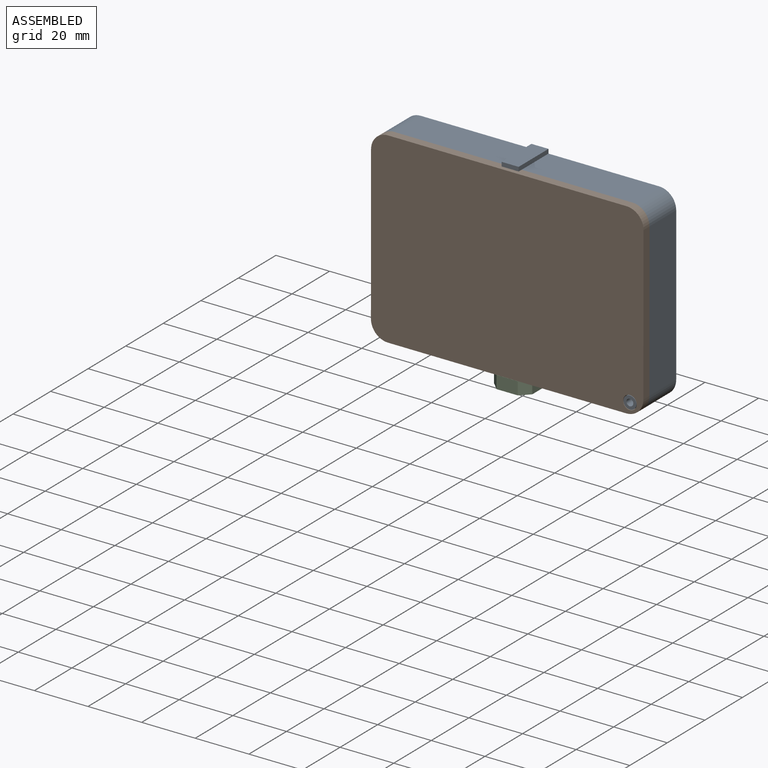
[diagram: assembled view]
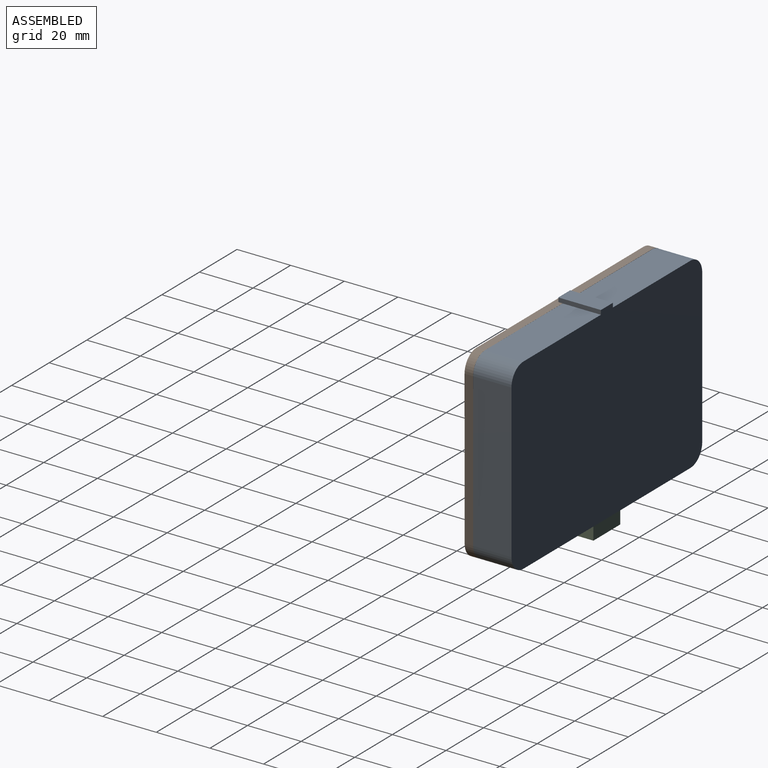
[diagram: assembled view, second angle]
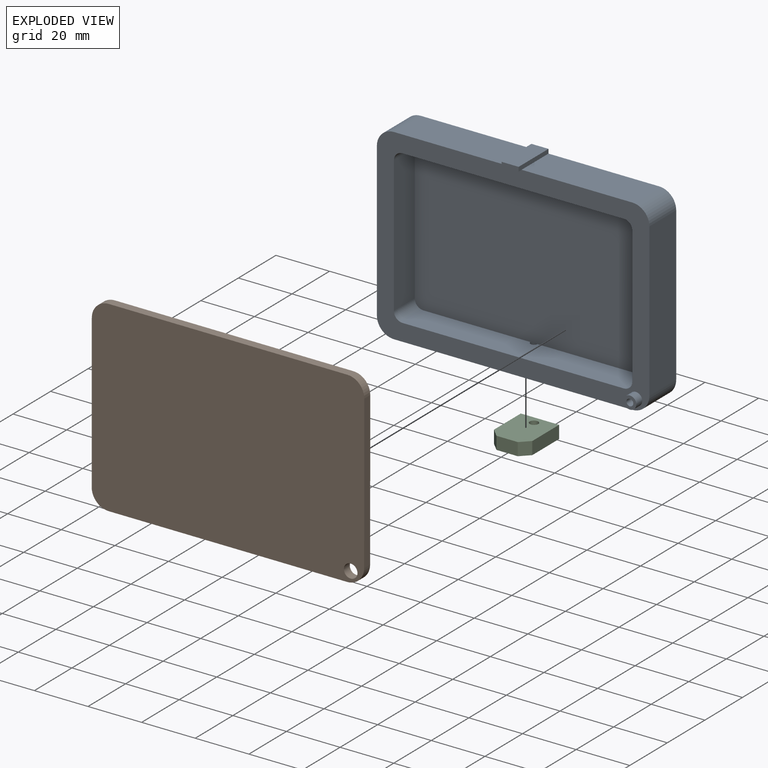
[diagram: exploded view]
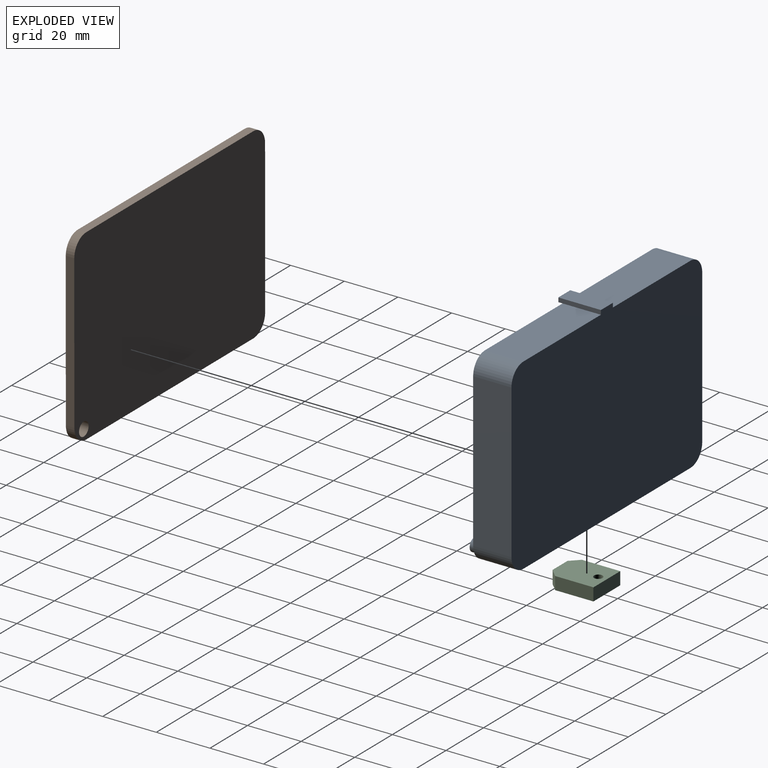
[diagram: exploded view, second angle]
ASSEMBLY  parts=3 mates=2
PART A: 36 faces, bbox 101.6x17.5x71.4 mm
  f0: plane 88.9x14.29mm, normal (0,0,-1), area 1136.5mm2, adj f9,f10,f14,f15,f30,f31,f32,f33
  f1: plane 82.55x11.11mm, normal (0,0,1), area 914.8mm2, adj f9,f11,f17,f18,f30
  f2: plane 41.27x14.29mm, normal (0,0,1), area 589.6mm2, adj f9,f10,f13,f25
  f3: plane 82.55x11.11mm, normal (0,0,-1), area 917.3mm2, adj f9,f11,f16,f19
  f4: plane 50.8x11.11mm, normal (-1,0,0), area 564.5mm2, adj f9,f11,f16,f17
  f5: plane 57.15x14.29mm, normal (1,0,0), area 816.5mm2, adj f9,f10,f12,f15
  f6: plane 41.28x14.29mm, normal (0,0,1), area 589.8mm2, adj f9,f10,f12,f24
  f7: plane 57.15x14.29mm, normal (-1,0,0), area 816.5mm2, adj f9,f10,f13,f14
  f8: plane 50.8x11.11mm, normal (1,0,0), area 564.5mm2, adj f9,f11,f18,f19
  f9: plane 101.6x69.85mm, normal (0,-1,0), area 1972.4mm2, adj f0,f1,f2,f3,f4,f5,f6,f7
  f10: plane 101.6x71.44mm, normal (0,1,0), area 7072.2mm2, adj f0,f2,f5,f6,f7,f12,f13,f14
  f11: plane 88.9x57.15mm, normal (0,-1,0), area 5072mm2, adj f1,f3,f4,f8,f16,f17,f18,f19
  f12: cylinder r=6.35mm len=14.29mm, axis (0,-1,0), area 142.5mm2, adj f5,f6,f9,f10
  f13: cylinder r=6.35mm len=14.29mm, axis (0,1,0), area 142.5mm2, adj f2,f7,f9,f10
  f14: cylinder r=6.35mm len=14.29mm, axis (0,-1,0), area 142.5mm2, adj f0,f7,f9,f10
  f15: cylinder r=6.35mm len=14.29mm, axis (0,1,0), area 142.5mm2, adj f0,f5,f9,f10
  f16: cylinder r=3.17mm len=11.11mm, axis (0,1,0), area 55.4mm2, adj f3,f4,f9,f11
  f17: cylinder r=3.17mm len=11.11mm, axis (0,-1,0), area 55.4mm2, adj f1,f4,f9,f11
  f18: cylinder r=3.17mm len=11.11mm, axis (0,1,0), area 55.4mm2, adj f1,f8,f9,f11
  f19: cylinder r=3.17mm len=11.11mm, axis (0,-1,0), area 55.4mm2, adj f3,f8,f9,f11
  f20: cylinder r=2.38mm len=4.76mm, axis (0,1,0), area 47.5mm2, adj f9,f21
  f21: plane 4.76x4.76mm, normal (0,-1,0), area 12.7mm2, adj f20,f22
  f22: cylinder r=1.27mm len=12.7mm, axis (0,-1,0), area 101.3mm2, adj f21,f23
  f23: plane 2.54x2.54mm, normal (0,-1,0), area 5.1mm2, adj f22
  f24: plane 15.88x1.59mm, normal (1,0,0), area 25.2mm2, adj f6,f10,f26,f27,f28
  f25: plane 15.88x1.59mm, normal (-1,0,0), area 25.2mm2, adj f2,f10,f26,f27,f28
  f26: plane 6.35x1.59mm, normal (0,-1,0), area 10.1mm2, adj f24,f25,f27,f28
  f27: plane 15.88x6.35mm, normal (0,0,1), area 100.8mm2, adj f10,f24,f25,f26
  f28: plane 6.35x1.59mm, normal (0,0,-1), area 10.1mm2, adj f9,f24,f25,f26
  f29: plane 2.54x1.27mm, normal (0,0,-1), area 2.5mm2, adj f11,f30
  f30: cylinder r=1.27mm len=6.35mm, axis (0,0,-1), area 50.7mm2, adj f0,f1,f29
  f31: plane 22.5x5.08mm, normal (0,-1,0), area 114.3mm2, adj f0,f32,f34,f35
  f32: plane 5.72x5.08mm, normal (-1,0,0), area 29mm2, adj f0,f31,f33,f35
  f33: plane 22.5x5.08mm, normal (0,1,0), area 114.3mm2, adj f0,f32,f34,f35
  f34: plane 5.72x5.08mm, normal (1,0,0), area 29mm2, adj f0,f31,f33,f35
  f35: plane 22.5x5.72mm, normal (0,0,-1), area 128.6mm2, adj f31,f32,f33,f34
PART B: 11 faces, bbox 101.6x3.2x69.9 mm
  f0: plane 57.15x3.18mm, normal (1,0,0), area 181.5mm2, adj f4,f5,f6,f9
  f1: plane 88.9x3.18mm, normal (0,0,1), area 282.3mm2, adj f4,f5,f6,f7
  f2: plane 57.15x3.18mm, normal (-1,0,0), area 181.5mm2, adj f4,f5,f7,f8
  f3: plane 88.9x3.18mm, normal (0,0,-1), area 282.3mm2, adj f4,f5,f8,f9
  f4: plane 101.6x69.85mm, normal (0,-1,0), area 7041.9mm2, adj f0,f1,f2,f3,f6,f7,f8,f9
  f5: plane 101.6x69.85mm, normal (0,1,0), area 7041.9mm2, adj f0,f1,f2,f3,f6,f7,f8,f9
  f6: cylinder r=6.35mm len=6.35mm, axis (0,-1,0), area 31.7mm2, adj f0,f1,f4,f5
  f7: cylinder r=6.35mm len=6.35mm, axis (0,1,0), area 31.7mm2, adj f1,f2,f4,f5
  f8: cylinder r=6.35mm len=6.35mm, axis (0,-1,0), area 31.7mm2, adj f2,f3,f4,f5
  f9: cylinder r=6.35mm len=6.35mm, axis (0,1,0), area 31.7mm2, adj f0,f3,f4,f5
  f10: cylinder r=2.54mm len=5.08mm, axis (0,-1,0), area 50.7mm2, adj f4,f5
PART C: 11 faces, bbox 14.3x4.8x17.5 mm
  f0: plane 14.29x4.76mm, normal (1,0,0), area 68mm2, adj f3,f4,f5,f9
  f1: plane 7.94x4.76mm, normal (0,0,1), area 37.8mm2, adj f4,f5,f9,f10
  f2: plane 14.29x4.76mm, normal (-1,0,0), area 68mm2, adj f3,f4,f5,f10
  f3: plane 14.29x4.76mm, normal (0,0,-1), area 68mm2, adj f0,f2,f4,f5
  f4: plane 17.46x14.29mm, normal (0,-1,0), area 231.5mm2, adj f0,f1,f2,f3,f6,f9,f10
  f5: plane 17.46x14.29mm, normal (0,1,0), area 119.6mm2, adj f0,f1,f2,f3,f6,f7,f9,f10
  f6: cylinder r=1.59mm len=4.76mm, axis (0,-1,0), area 47.5mm2, adj f4,f5
  f7: cylinder r=5.97mm len=11.94mm, axis (0,1,0), area 114.3mm2, adj f5,f8
  f8: plane 11.94x11.94mm, normal (0,1,0), area 111.9mm2, adj f7
  f9: plane 4.76x3.18mm, normal (0.71,0,0.71), area 21.4mm2, adj f0,f1,f4,f5
  f10: plane 4.76x3.18mm, normal (-0.71,0,0.71), area 21.4mm2, adj f1,f2,f4,f5
PLACE A t=(2.22,17.52,4.78)mm fixed
PLACE B rot(axis=(0,-1,0),180deg) t=(2.24,3.24,4.82)mm
PLACE C rot(axis=(0,0.71,-0.71),180deg) t=(2.22,8.79,-34.91)mm
MATE revolute C.f6 <-> A.f30  axis (0,0,1) through (2.22,14.35,-30.14)mm
MATE revolute B.f10 <-> A.f20  axis (0,-1,0) through (47.98,0.06,-26.14)mm
